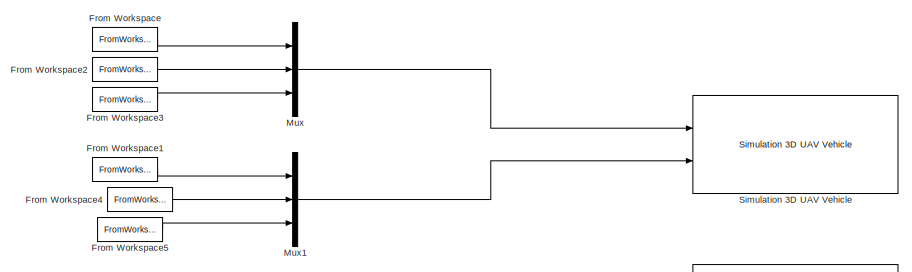
[diagram: root canvas - part 1/2, top left region]
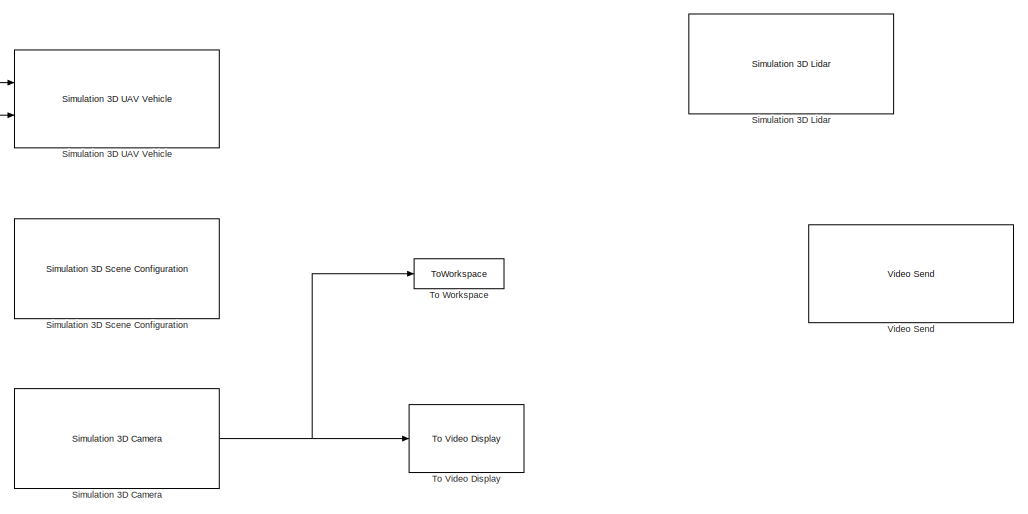
[diagram: root canvas - part 2/2, right side, full height]
MODEL slx_1bb18631b1e1
KIND model
CONFIG AbsTol = auto
CONFIG EnableMultiTasking = off
CONFIG FixedStep = auto
CONFIG MaxStep = auto
CONFIG MinStep = auto
CONFIG RelTol = 1e-3
CONFIG SampleTimeConstraint = Unconstrained
CONFIG SolverName = VariableStepAuto
CONFIG StartTime = 0.0
CONFIG StopTime = 10
BLOCK [FromWorkspace] From Workspace
  VariableName = p.x
BLOCK [FromWorkspace] From Workspace1
  VariableName = o.x
BLOCK [FromWorkspace] From Workspace2
  VariableName = p.y
BLOCK [FromWorkspace] From Workspace3
  VariableName = p.z
BLOCK [FromWorkspace] From Workspace4
  VariableName = o.y
BLOCK [FromWorkspace] From Workspace5
  VariableName = o.z
BLOCK [Mux] Mux
  DisplayOption = bar
  Inputs = 3
  Ports = [3, 1]
BLOCK [Mux] Mux1
  DisplayOption = bar
  Inputs = 3
  Ports = [3, 1]
BLOCK [Reference] Simulation 3D Camera  REF=sim3dcameralib/Simulation 3D Camera
  Ports = [0, 1]
  Priority = 1
  SourceBlock = sim3dcameralib/Simulation 3D Camera
  SourceProductBaseCode = AE,DR,UV,VE
  SourceType = Simulation 3D Camera
BLOCK [Reference] Simulation 3D Lidar  REF=sim3dphyssensorlib/Simulation 3D Lidar
  Commented = on
  Ports = [0, 1]
  Priority = 1
  SourceBlock = sim3dphyssensorlib/Simulation 3D Lidar
  SourceProductBaseCode = AE,DR,UV,VE
  SourceType = Simulation 3D Lidar
BLOCK [Reference] Simulation 3D Scene Configuration  REF=sim3dlib/Simulation 3D Scene Configuration
  Ports = []
  Priority = 0
  SourceBlock = sim3dlib/Simulation 3D Scene Configuration
  SourceProductBaseCode = AE,DR,UV,VE
  SourceType = Simulation 3D Scene Configuration
BLOCK [Reference] Simulation 3D UAV Vehicle  REF=uavsim3dlib/Simulation 3D UAV Vehicle
  Ports = [2]
  Priority = -1
  SourceBlock = uavsim3dlib/Simulation 3D UAV Vehicle
  SourceProductBaseCode = UV
  SourceType = Simulation 3D UAV Vehicle
BLOCK [Reference] To Video Display  REF=visionsinks/To Video Display
  Ports = [1]
  SourceBlock = visionsinks/To Video Display
  SourceProductBaseCode = VP
  SourceType = To Video Display
BLOCK [ToWorkspace] To Workspace
  FixptAsFi = on
  MaxDataPoints = inf
  Ports = [1]
  SampleTime = -1
  VariableName = simout
BLOCK [Reference] Video Send  REF=uavsim3dlib/Video Send
  Commented = on
  Ports = [1]
  SourceBlock = uavsim3dlib/Video Send
  SourceProductBaseCode = UV
  SourceType = uav.sluav.internal.system.VideoSend
LINE From Workspace1:1 -> Mux1:1
LINE From Workspace2:1 -> Mux:2
LINE From Workspace3:1 -> Mux:3
LINE From Workspace4:1 -> Mux1:2
LINE From Workspace5:1 -> Mux1:3
LINE From Workspace:1 -> Mux:1
LINE Mux1:1 -> Simulation 3D UAV Vehicle:2
LINE Mux:1 -> Simulation 3D UAV Vehicle:1
NET Simulation 3D Camera:1 -> To Video Display:1, To Workspace:1
note: NET lines group one-source signal fan-out (src -> all destinations, sorted); 1:1 wires keep LINE
